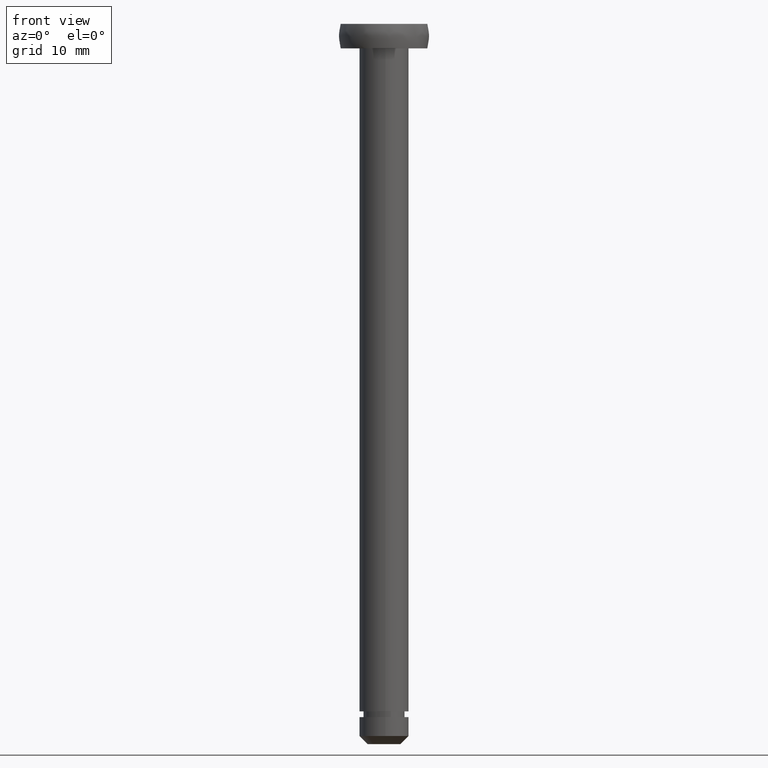
[diagram: clean part render]
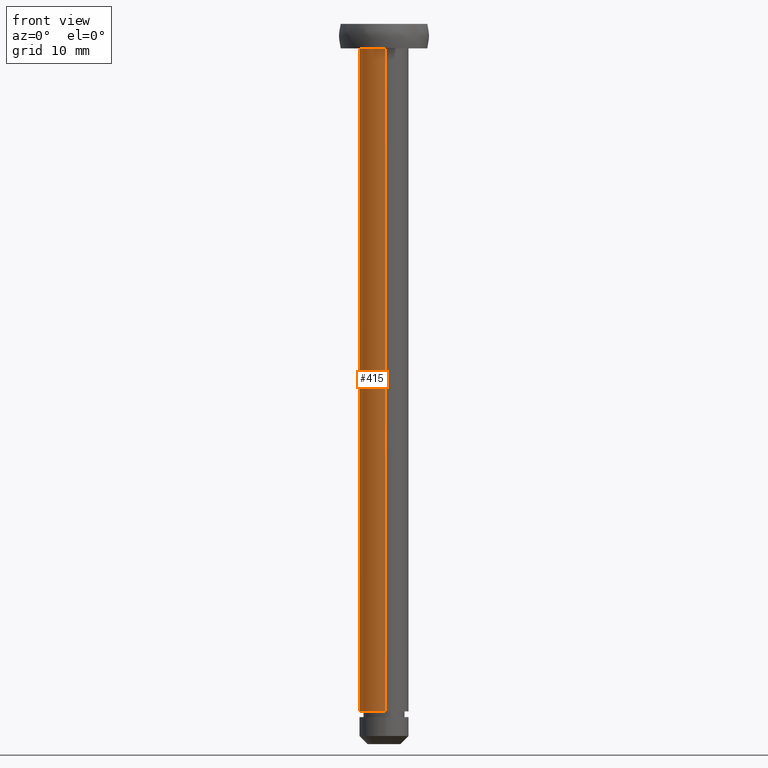
[diagram: same view with one face highlighted and labeled with its STEP entity id]
A machine part, front view. The second image highlights one B-rep face of the part: STEP entity #415.
In plain terms, the highlighted face is a freeform B-spline surface patch.
Its self-contained STEP definition (entity closure, byte-faithful):
#252=CARTESIAN_POINT('',(-0.354102703992168,2.979028579088397,3.999999999999999));
#253=VERTEX_POINT('',#252);
#271=CARTESIAN_POINT('',(-0.354102703992168,2.979028579088397,85.000008000000008));
#272=VERTEX_POINT('',#271);
#273=CARTESIAN_POINT('',(-0.354102703992168,2.979028579088397,85.000008000000008));
#274=CARTESIAN_POINT('',(-0.354102703992168,2.979028579088397,3.999999999999999));
#275=QUASI_UNIFORM_CURVE('',1,(#273,#274),.UNSPECIFIED.,.F.,.U.);
#276=EDGE_CURVE('',#272,#253,#275,.T.);
#295=CARTESIAN_POINT('',(0.183145618696712,-2.994404395259965,85.000008000000008));
#296=VERTEX_POINT('',#295);
#310=CARTESIAN_POINT('',(0.183145618696712,-2.994404395259965,3.999999999999999));
#311=VERTEX_POINT('',#310);
#312=CARTESIAN_POINT('',(0.183145618696712,-2.994404395259965,85.000008000000008));
#313=CARTESIAN_POINT('',(0.183145618696712,-2.994404395259965,3.999999999999999));
#314=QUASI_UNIFORM_CURVE('',1,(#312,#313),.UNSPECIFIED.,.F.,.U.);
#315=EDGE_CURVE('',#296,#311,#314,.T.);
#333=CARTESIAN_POINT('',(0.183145618604571,-2.994404395265600,87.025008200000030));
#334=CARTESIAN_POINT('',(-2.811258776661029,-3.177550013870171,87.025008200000030));
#335=CARTESIAN_POINT('',(-2.994404395265600,-0.183145618604571,87.025008200000030));
#336=CARTESIAN_POINT('',(-3.167358590197582,2.644630472518504,87.025008200000045));
#337=CARTESIAN_POINT('',(-0.354102703970275,2.979028579091000,87.025008200000045));
#338=CARTESIAN_POINT('',(0.183145618604571,-2.994404395265600,1.924374795000006));
#339=CARTESIAN_POINT('',(-2.811258776661029,-3.177550013870171,1.924374795000005));
#340=CARTESIAN_POINT('',(-2.994404395265600,-0.183145618604571,1.924374795000006));
#341=CARTESIAN_POINT('',(-3.167358590197582,2.644630472518504,1.924374795000006));
#342=CARTESIAN_POINT('',(-0.354102703970275,2.979028579091000,1.924374795000006));
#350=(BOUNDED_SURFACE()B_SPLINE_SURFACE(2,1,((#333,#338),(#334,#339),(#335,#340),(#336,#341),(#337,#342)),.UNSPECIFIED.,.F.,.F.,.U.)B_SPLINE_SURFACE_WITH_KNOTS((3,2,3),(2,2),(0.0,4.970562748477139,9.742302987015194),(0.0,85.100633405000039),.UNSPECIFIED.)GEOMETRIC_REPRESENTATION_ITEM()RATIONAL_B_SPLINE_SURFACE(((1.0,1.0),(0.707106781186548,0.707106781186548),(1.0,1.0),(0.718822509939086,0.718822509939086),(0.977505800795127,0.977505800795127)))REPRESENTATION_ITEM('')SURFACE());
#351=CARTESIAN_POINT('',(-3.0,0.0,4.0));
#352=VERTEX_POINT('',#351);
#353=CARTESIAN_POINT('',(-3.0,0.0,4.0));
#354=CARTESIAN_POINT('',(-3.000000000000000,2.664523577814664,4.000000000000001));
#355=CARTESIAN_POINT('',(-0.354102703992168,2.979028579088397,3.999999999999999));
#363=(BOUNDED_CURVE()B_SPLINE_CURVE(2,(#353,#354,#355),.UNSPECIFIED.,.F.,.U.)B_SPLINE_CURVE_WITH_KNOTS((3,3),(0.0,0.229562473513160),.UNSPECIFIED.)CURVE()GEOMETRIC_REPRESENTATION_ITEM()RATIONAL_B_SPLINE_CURVE((1.0,0.731050832855810,0.956026754183017))REPRESENTATION_ITEM(''));
#364=EDGE_CURVE('',#352,#253,#363,.T.);
#365=ORIENTED_EDGE('',*,*,#364,.F.);
#366=CARTESIAN_POINT('',(0.183145618696712,-2.994404395259965,4.000000000000000));
#367=CARTESIAN_POINT('',(0.091658289988166,-3.0,4.0));
#368=CARTESIAN_POINT('',(0.0,-3.0,4.0));
#369=CARTESIAN_POINT('',(-3.0,-3.0,4.000000000000000));
#370=CARTESIAN_POINT('',(-3.0,0.0,4.0));
#378=(BOUNDED_CURVE()B_SPLINE_CURVE(2,(#366,#367,#368,#369,#370),.UNSPECIFIED.,.F.,.U.)B_SPLINE_CURVE_WITH_KNOTS((3,2,3),(0.739332962231349,0.750000000000000,1.0),.UNSPECIFIED.)CURVE()GEOMETRIC_REPRESENTATION_ITEM()RATIONAL_B_SPLINE_CURVE((0.976072041650443,0.987502787890941,1.0,0.707106781186548,1.0))REPRESENTATION_ITEM(''));
#379=EDGE_CURVE('',#311,#352,#378,.T.);
#380=ORIENTED_EDGE('',*,*,#379,.F.);
#381=ORIENTED_EDGE('',*,*,#315,.F.);
#382=CARTESIAN_POINT('',(-3.0,0.0,85.000008000000008));
#383=VERTEX_POINT('',#382);
#384=CARTESIAN_POINT('',(0.183145618696712,-2.994404395259965,85.000008000000008));
#385=CARTESIAN_POINT('',(0.091658289988166,-3.0,85.000008000000008));
#386=CARTESIAN_POINT('',(0.0,-3.0,85.000008000000008));
#387=CARTESIAN_POINT('',(-3.0,-3.0,85.000008000000008));
#388=CARTESIAN_POINT('',(-3.0,0.0,85.000008000000008));
#396=(BOUNDED_CURVE()B_SPLINE_CURVE(2,(#384,#385,#386,#387,#388),.UNSPECIFIED.,.F.,.U.)B_SPLINE_CURVE_WITH_KNOTS((3,2,3),(0.739332962231349,0.750000000000000,1.0),.UNSPECIFIED.)CURVE()GEOMETRIC_REPRESENTATION_ITEM()RATIONAL_B_SPLINE_CURVE((0.976072041650443,0.987502787890941,1.0,0.707106781186548,1.0))REPRESENTATION_ITEM(''));
#397=EDGE_CURVE('',#296,#383,#396,.T.);
#398=ORIENTED_EDGE('',*,*,#397,.T.);
#399=CARTESIAN_POINT('',(-3.0,0.0,85.000008000000008));
#400=CARTESIAN_POINT('',(-3.000000000000000,2.664523577814664,85.000007999999994));
#401=CARTESIAN_POINT('',(-0.354102703992168,2.979028579088397,85.000008000000008));
#409=(BOUNDED_CURVE()B_SPLINE_CURVE(2,(#399,#400,#401),.UNSPECIFIED.,.F.,.U.)B_SPLINE_CURVE_WITH_KNOTS((3,3),(0.0,0.229562473513160),.UNSPECIFIED.)CURVE()GEOMETRIC_REPRESENTATION_ITEM()RATIONAL_B_SPLINE_CURVE((1.0,0.731050832855810,0.956026754183017))REPRESENTATION_ITEM(''));
#410=EDGE_CURVE('',#383,#272,#409,.T.);
#411=ORIENTED_EDGE('',*,*,#410,.T.);
#412=ORIENTED_EDGE('',*,*,#276,.T.);
#413=EDGE_LOOP('',(#365,#380,#381,#398,#411,#412));
#414=FACE_OUTER_BOUND('',#413,.T.);
#415=ADVANCED_FACE('',(#414),#350,.T.);